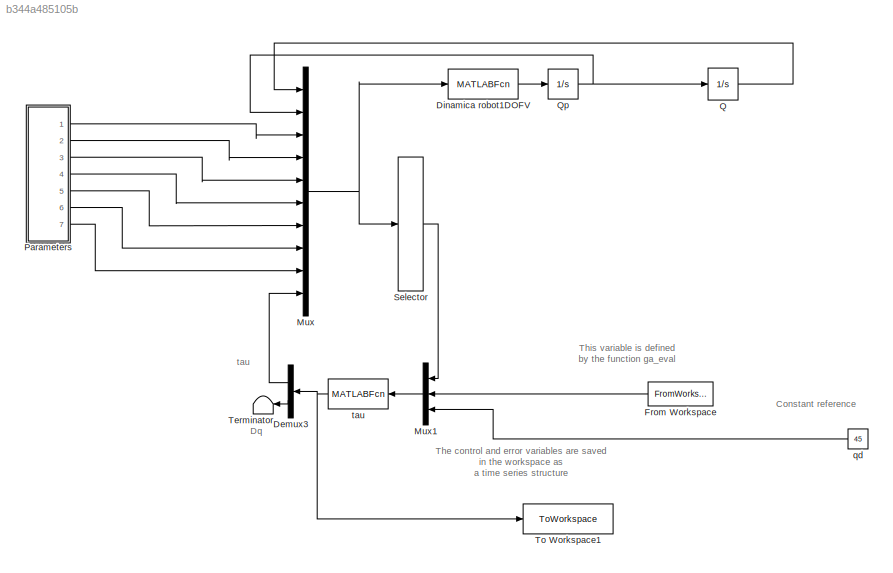
MODEL slx_b344a485105b
KIND model
CONFIG AbsTol = auto
CONFIG EnableMultiTasking = on
CONFIG FixedStep = 0.004
CONFIG MaxStep = auto
CONFIG MinStep = auto
CONFIG RelTol = 1e-3
CONFIG SampleTimeConstraint = Unconstrained
CONFIG SolverName = ode1
CONFIG StartTime = 0.0
CONFIG StopTime = 500
BLOCK [Demux] Demux3
  Outputs = 2
  Ports = [1, 2]
BLOCK [MATLABFcn] Dinamica robot1DOFV
  MATLABFcn = Dinamic_robot1DOFV(u)
  OutputDimensions = 1
  Ports = [1, 1]
BLOCK [FromWorkspace] From Workspace
  VariableName = sim_PD
BLOCK [Mux] Mux
  DisplayOption = bar
  Inputs = 10
  Ports = [10, 1]
BLOCK [Mux] Mux1
  DisplayOption = bar
  Inputs = 3
  Ports = [3, 1]
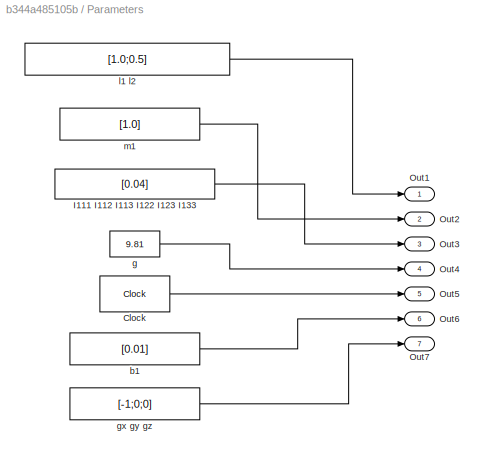
BLOCK [SubSystem] Parameters
  Ports = [0, 7]
  RequestExecContextInheritance = off
BLOCK [Clock] Parameters/Clock
  DisplayTime = on
BLOCK [Constant] Parameters/I111 I112 I113 I122 I123 I133
  Value = [0.04]
BLOCK [Outport] Parameters/Out1
BLOCK [Outport] Parameters/Out2
  Port = 2
BLOCK [Outport] Parameters/Out3
  Port = 3
BLOCK [Outport] Parameters/Out4
  Port = 4
BLOCK [Outport] Parameters/Out5
  Port = 5
BLOCK [Outport] Parameters/Out6
  Port = 6
BLOCK [Outport] Parameters/Out7
  Port = 7
BLOCK [Constant] Parameters/b1 
  Value = [0.01]
BLOCK [Constant] Parameters/g
  Value = 9.81
BLOCK [Constant] Parameters/gx gy gz
  Value = [-1;0;0]
BLOCK [Constant] Parameters/l1 l2 
  Value = [1.0;0.5]
BLOCK [Constant] Parameters/m1 
  Value = [1.0]
BLOCK [Integrator] Q
  Ports = [1, 1]
BLOCK [Integrator] Qp
  InitialCondition = [0]
  Ports = [1, 1]
BLOCK [Selector] Selector
  IndexOptions = Index vector (dialog)
  Indices = [1:12]
  InputPortWidth = 13
  OutputSizes = 1
  Ports = [1, 1]
BLOCK [Terminator] Terminator
BLOCK [ToWorkspace] To Workspace1
  FixptAsFi = on
  MaxDataPoints = inf
  Ports = [1]
  SampleTime = -1
  SaveFormat = Timeseries
  VariableName = sim_error
BLOCK [Constant] qd
  Value = 45
BLOCK [MATLABFcn] tau
  MATLABFcn = Tau(u)
  OutputDimensions = 2
  Ports = [1, 1]
ANNOTATION (root): Constant reference
ANNOTATION (root): Dq
ANNOTATION (root): The control and error variables are saved in the workspace as a time series structure
ANNOTATION (root): This variable is defined by the function ga_eval
ANNOTATION (root): tau
LINE Demux3:1 -> Mux:10
LINE Demux3:2 -> Terminator:1
LINE Dinamica robot1DOFV:1 -> Qp:1
LINE From Workspace:1 -> Mux1:2
LINE Mux1:1 -> tau:1
NET Mux:1 -> Dinamica robot1DOFV:1, Selector:1
LINE Parameters/Clock:1 -> Parameters/Out5:1
LINE Parameters/I111 I112 I113 I122 I123 I133:1 -> Parameters/Out3:1
LINE Parameters/b1 :1 -> Parameters/Out6:1
LINE Parameters/g:1 -> Parameters/Out4:1
LINE Parameters/gx gy gz:1 -> Parameters/Out7:1
LINE Parameters/l1 l2 :1 -> Parameters/Out1:1
LINE Parameters/m1 :1 -> Parameters/Out2:1
LINE Parameters:1 -> Mux:3
LINE Parameters:2 -> Mux:4
LINE Parameters:3 -> Mux:5
LINE Parameters:4 -> Mux:6
LINE Parameters:5 -> Mux:7
LINE Parameters:6 -> Mux:8
LINE Parameters:7 -> Mux:9
LINE Q:1 -> Mux:1
NET Qp:1 -> Mux:2, Q:1
LINE Selector:1 -> Mux1:1
LINE qd:1 -> Mux1:3
NET tau:1 -> Demux3:1, To Workspace1:1
note: NET lines group one-source signal fan-out (src -> all destinations, sorted); 1:1 wires keep LINE
